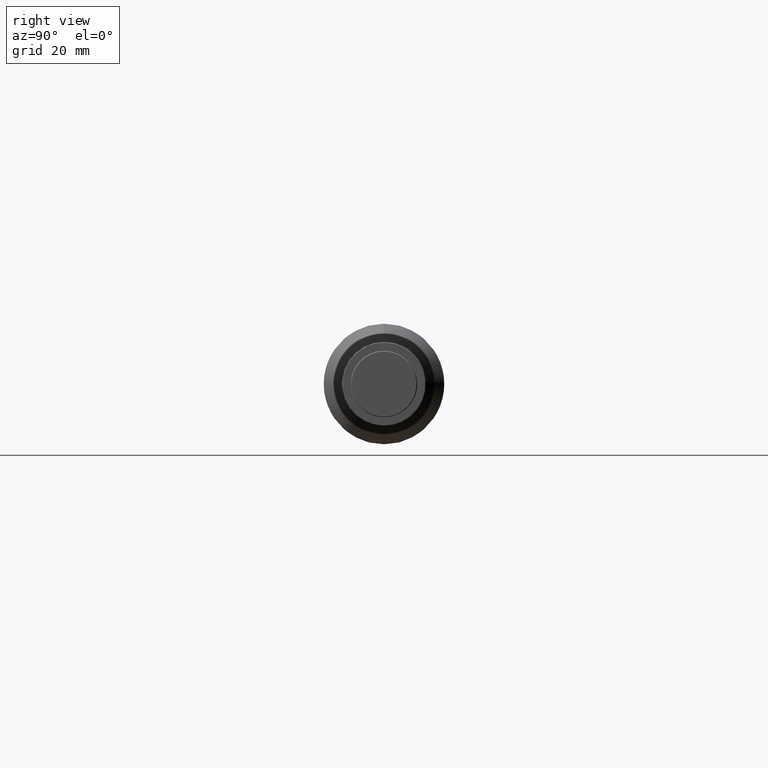
[diagram: clean part render]
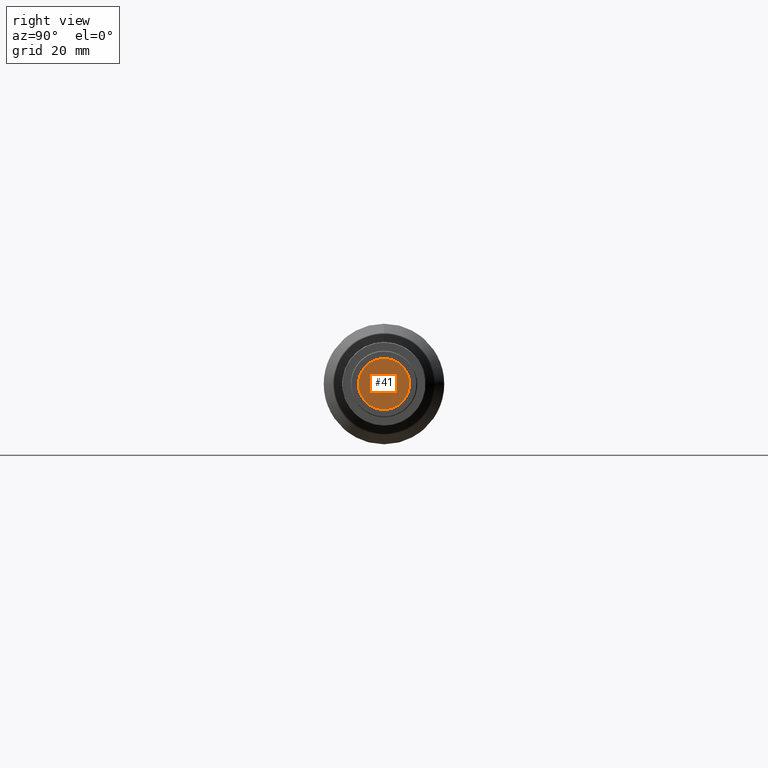
[diagram: same view with one face highlighted and labeled with its STEP entity id]
A machine part, right view. The second image highlights one B-rep face of the part: STEP entity #41.
In plain terms, the highlighted conical surface has half-angle 89.999 deg.
Its self-contained STEP definition (entity closure, byte-faithful):
#41 = ADVANCED_FACE ( 'NONE', ( #1186 ), #1290, .T. ) ;
#62 = CARTESIAN_POINT ( 'NONE',  ( 271.2848144272487616, -5.994649292976315103, -7.795473268832119551 ) ) ;
#66 = CARTESIAN_POINT ( 'NONE',  ( 271.2849324921106700, 2.548417568003854328, 9.496858000314400527 ) ) ;
#111 = DIRECTION ( 'NONE',  ( -0.9999999999044555388, 1.382350199184758352E-05, 0.000000000000000000 ) ) ;
#214 = CARTESIAN_POINT ( 'NONE',  ( 271.2850320000000579, 9.749687490746362428, 1.276762903542791872 ) ) ;
#245 = CARTESIAN_POINT ( 'NONE',  ( 271.2850284907190144, 9.495511586740802201, 2.552897651609274288 ) ) ;
#265 = B_SPLINE_CURVE_WITH_KNOTS ( 'NONE', 3,
 ( #1822, #1188, #850, #1666, #1469, #62, #1013, #1646, #1987, #694, #677, #1493, #542, #1180, #859, #868, #1310, #523 ),
 .UNSPECIFIED., .F., .F.,
 ( 4, 2, 2, 2, 2, 2, 2, 2, 4 ),
 ( 0.000000000000000000, 0.1250000000000000000, 0.2500000000000000000, 0.3750000000000000000, 0.5000000000000000000, 0.6250000000000000000, 0.7500000000000000000, 0.8750000000000000000, 1.000000000000000000 ),
 .UNSPECIFIED. ) ;
#415 = VERTEX_POINT ( 'NONE', #1045 ) ;
#523 = CARTESIAN_POINT ( 'NONE',  ( 271.2850320000000579, 9.749999999953889329, 1.745928447361091393E-16 ) ) ;
#542 = CARTESIAN_POINT ( 'NONE',  ( 271.2849800402112237, 5.989011741956139723, -7.798030153463962222 ) ) ;
#546 = CARTESIAN_POINT ( 'NONE',  ( 271.2847625367507476, -9.750312501803962917, 1.275781126767465912 ) ) ;
#558 = CARTESIAN_POINT ( 'NONE',  ( 271.2848293689803540, -4.913443415169736816, 8.518309364113457960 ) ) ;
#652 = ORIENTED_EDGE ( 'NONE', *, *, #1311, .T. ) ;
#664 = VERTEX_POINT ( 'NONE', #1873 ) ;
#677 = CARTESIAN_POINT ( 'NONE',  ( 271.2849324921107268, 2.548417568003860989, -9.496858000314400527 ) ) ;
#682 = CARTESIAN_POINT ( 'NONE',  ( 271.2849650890912017, 4.907126698310819712, 8.520525203911967438 ) ) ;
#694 = CARTESIAN_POINT ( 'NONE',  ( 271.2849148590844948, 1.272521907715047140, -9.750312506459676953 ) ) ;
#699 = CARTESIAN_POINT ( 'NONE',  ( 271.2848619530788596, -2.555666175052068390, 9.495609189275322493 ) ) ;
#719 = CARTESIAN_POINT ( 'NONE',  ( 271.2850149844592238, 8.517836051966032329, 4.911581935420318068 ) ) ;
#838 = CARTESIAN_POINT ( 'NONE',  ( 271.2848795826270702, -1.280022122351448743, 9.749687487952455101 ) ) ;
#850 = CARTESIAN_POINT ( 'NONE',  ( 271.2847660347103442, -9.496955601035487859, -2.551186091934084299 ) ) ;
#854 = AXIS2_PLACEMENT_3D ( 'NONE', #1053, #111, #1031 ) ;
#859 = CARTESIAN_POINT ( 'NONE',  ( 271.2850149844592238, 8.517836051966030553, -4.911581935420316292 ) ) ;
#866 = CARTESIAN_POINT ( 'NONE',  ( 271.2850320000000579, 9.749999999953889329, 1.745928447361091393E-16 ) ) ;
#868 = CARTESIAN_POINT ( 'NONE',  ( 271.2850284907190144, 9.495511586740805754, -2.552897651609272511 ) ) ;
#875 = CARTESIAN_POINT ( 'NONE',  ( 271.2849800402112237, 5.989011741956137946, 7.798030153463962222 ) ) ;
#1005 = B_SPLINE_CURVE_WITH_KNOTS ( 'NONE', 3,
 ( #866, #214, #245, #719, #1640, #875, #682, #66, #1500, #838, #699, #558, #1169, #1829, #1475, #1330, #546, #1513 ),
 .UNSPECIFIED., .F., .F.,
 ( 4, 2, 2, 2, 2, 2, 2, 2, 4 ),
 ( 0.000000000000000000, 0.1250000000000000555, 0.2500000000000001110, 0.3750000000000001110, 0.5000000000000001110, 0.6250000000000000000, 0.7500000000000001110, 0.8750000000000000000, 1.000000000000000000 ),
 .UNSPECIFIED. ) ;
#1013 = CARTESIAN_POINT ( 'NONE',  ( 271.2848293689804109, -4.913443415169738593, -8.518309364113457960 ) ) ;
#1031 = DIRECTION ( 'NONE',  ( -1.382350199467623480E-05, -0.9999999999044554277, 0.000000000000000000 ) ) ;
#1045 = CARTESIAN_POINT ( 'NONE',  ( 271.2850320000000579, 9.749999999953889329, 1.745928447361091393E-16 ) ) ;
#1053 = CARTESIAN_POINT ( 'NONE',  ( 271.2848963600301886, -0.003750107306302145459, 0.000000000000000000 ) ) ;
#1169 = CARTESIAN_POINT ( 'NONE',  ( 271.2848144272487048, -5.994649292976315991, 7.795473268832116887 ) ) ;
#1180 = CARTESIAN_POINT ( 'NONE',  ( 271.2850049928107410, 7.794722000225903003, -5.993203804671439983 ) ) ;
#1186 = FACE_OUTER_BOUND ( 'NONE', #1212, .T. ) ;
#1188 = CARTESIAN_POINT ( 'NONE',  ( 271.2847625367506907, -9.750312501803962917, -1.275781126767467466 ) ) ;
#1212 = EDGE_LOOP ( 'NONE', ( #652, #1634 ) ) ;
#1290 = CONICAL_SURFACE ( 'NONE', #854, 9.812272608660004281, 1.570782503292901033 ) ;
#1310 = CARTESIAN_POINT ( 'NONE',  ( 271.2850320000001147, 9.749687490746364205, -1.276762903542789429 ) ) ;
#1311 = EDGE_CURVE ( 'NONE', #664, #415, #265, .T. ) ;
#1330 = CARTESIAN_POINT ( 'NONE',  ( 271.2847660347104011, -9.496955601035484307, 2.551186091934077638 ) ) ;
#1469 = CARTESIAN_POINT ( 'NONE',  ( 271.2847894964646684, -7.798781420581136992, -5.990457231405392768 ) ) ;
#1475 = CARTESIAN_POINT ( 'NONE',  ( 271.2847795172152132, -8.520998514432383431, 4.908988178998065166 ) ) ;
#1493 = CARTESIAN_POINT ( 'NONE',  ( 271.2849650890911448, 4.907126698310824153, -8.520525203911962109 ) ) ;
#1500 = CARTESIAN_POINT ( 'NONE',  ( 271.2849148590845516, 1.272521907715044698, 9.750312506459676953 ) ) ;
#1513 = CARTESIAN_POINT ( 'NONE',  ( 271.2848972726953320, -9.749999996881557607, -1.617584568164225530E-15 ) ) ;
#1634 = ORIENTED_EDGE ( 'NONE', *, *, #1959, .T. ) ;
#1640 = CARTESIAN_POINT ( 'NONE',  ( 271.2850049928107410, 7.794722000225902114, 5.993203804671442647 ) ) ;
#1646 = CARTESIAN_POINT ( 'NONE',  ( 271.2848619530786891, -2.555666175052067945, -9.495609189275322493 ) ) ;
#1666 = CARTESIAN_POINT ( 'NONE',  ( 271.2847795172152132, -8.520998514432374549, -4.908988178998069607 ) ) ;
#1822 = CARTESIAN_POINT ( 'NONE',  ( 271.2848972726953320, -9.749999996881557607, -1.617584568164225530E-15 ) ) ;
#1829 = CARTESIAN_POINT ( 'NONE',  ( 271.2847894964646684, -7.798781420581140544, 5.990457231405395433 ) ) ;
#1873 = CARTESIAN_POINT ( 'NONE',  ( 271.2848972726953320, -9.749999996881557607, -1.617584568164225530E-15 ) ) ;
#1959 = EDGE_CURVE ( 'NONE', #415, #664, #1005, .T. ) ;
#1987 = CARTESIAN_POINT ( 'NONE',  ( 271.2848795826269566, -1.280022122351447411, -9.749687487952453324 ) ) ;